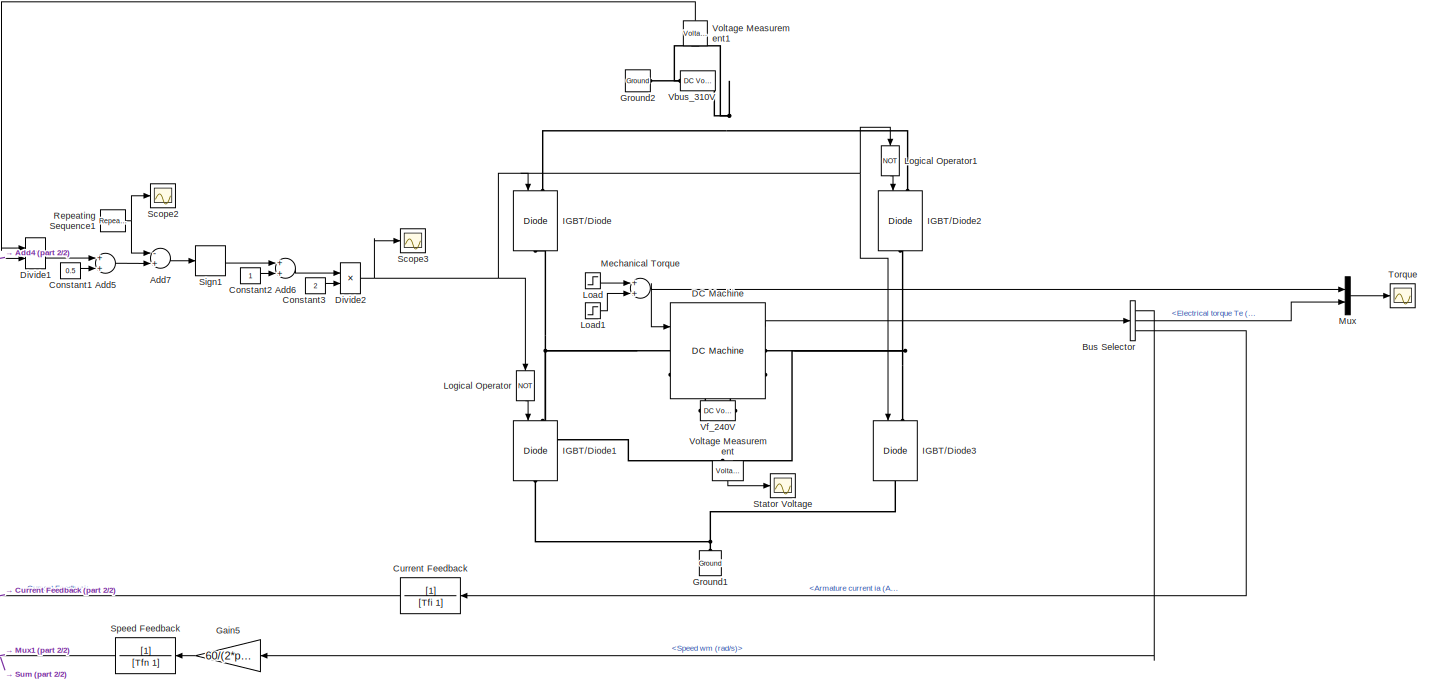
[diagram: root canvas - part 1/2, right side, full height]
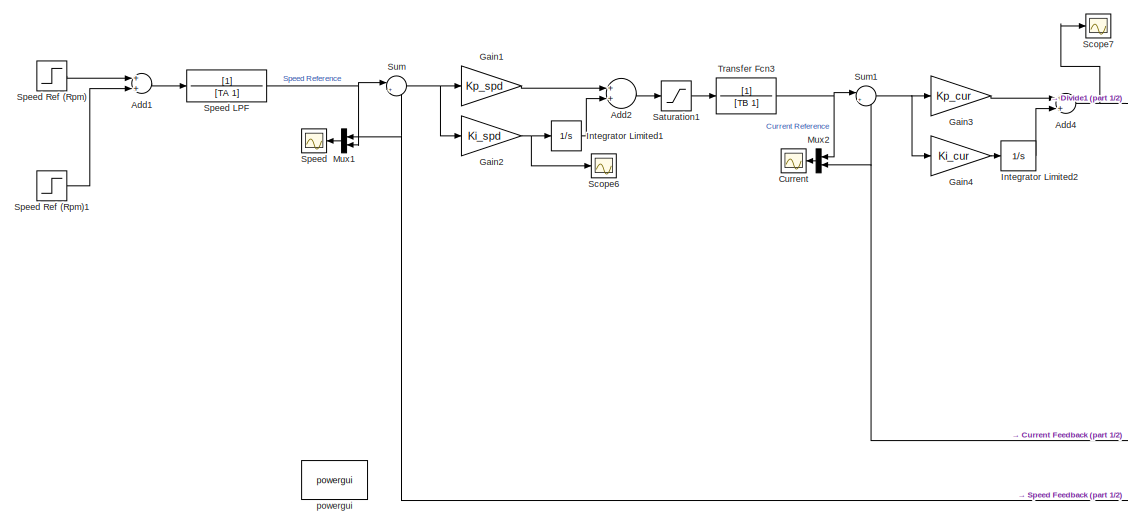
[diagram: root canvas - part 2/2, middle left region]
MODEL slx_5696df85d1f1
KIND model
CONFIG AbsTol = auto
CONFIG EnableMultiTasking = off
CONFIG FixedStep = auto
CONFIG MaxStep = 1e-6
CONFIG MinStep = auto
CONFIG RelTol = 1e-3
CONFIG SampleTimeConstraint = Unconstrained
CONFIG Solver = VariableStepAuto
CONFIG SolverName = VariableStepAuto
CONFIG StartTime = 0.0
CONFIG StopTime = 1
BLOCK [Sum] Add1
  InputSameDT = off
  OutDataTypeStr = Inherit: Inherit via internal rule
  Ports = [2, 1]
  SaturateOnIntegerOverflow = off
BLOCK [Sum] Add2
  InputSameDT = off
  OutDataTypeStr = Inherit: Inherit via internal rule
  Ports = [2, 1]
  SaturateOnIntegerOverflow = off
BLOCK [Sum] Add4
  InputSameDT = off
  OutDataTypeStr = Inherit: Inherit via internal rule
  Ports = [2, 1]
  SaturateOnIntegerOverflow = off
BLOCK [Sum] Add5
  InputSameDT = off
  OutDataTypeStr = Inherit: Inherit via internal rule
  Ports = [2, 1]
  SaturateOnIntegerOverflow = off
BLOCK [Sum] Add6
  InputSameDT = off
  OutDataTypeStr = Inherit: Inherit via internal rule
  Ports = [2, 1]
  SaturateOnIntegerOverflow = off
BLOCK [Sum] Add7
  InputSameDT = off
  Inputs = -+
  OutDataTypeStr = Inherit: Inherit via internal rule
  Ports = [2, 1]
  SaturateOnIntegerOverflow = off
BLOCK [BusSelector] Bus Selector
  OutputAsBus = off
  OutputSignals = Speed wm (rad/s),Electrical torque Te (n m),Armature current ia (A)
  Ports = [1, 3]
BLOCK [Constant] Constant1
  Value = 0.5
BLOCK [Constant] Constant2
BLOCK [Constant] Constant3
  Value = 2
BLOCK [Scope] Current
  Floating = off
  NumInputPorts = 1
  Ports = [1]
  ScopeSpecificationString = Simulink.scopes.TimeScopeBlockCfg('CurrentConfiguration', extmgr.ConfigurationSet(extmgr.Configuration('Core','General UI',true,'FigureColor',[1 1 1]),extmgr.Configuration('Core','Source UI',true),extmgr.Configuration('Sources','WiredSimulink',true,'DataLoggingVariableName','ScopeData1'),extmgr.Configuration('Visuals','Time Domain',true,'SerializedDisplays',{struct('MinYLimReal','-72.24721','MaxYL...<+1722ch>
BLOCK [TransferFcn] Current Feedback
  Denominator = [Tfi 1]
BLOCK [Reference] DC Machine  REF=powerlib/Machines/DC Machine
  Ports = [1, 1, 0, 0, 0, 2, 2]
  SourceBlock = powerlib/Machines/DC Machine
  SourceProductBaseCode = PS
  SourceProductName = Simscape Electrical
  SourceType = DC machine
BLOCK [Product] Divide1
  InputSameDT = off
  Inputs = /*
  OutDataTypeStr = Inherit: Inherit via internal rule
  Ports = [2, 1]
  RndMeth = Floor
  SaturateOnIntegerOverflow = off
BLOCK [Product] Divide2
  InputSameDT = off
  Inputs = */
  OutDataTypeStr = Inherit: Inherit via internal rule
  Ports = [2, 1]
  RndMeth = Floor
  SaturateOnIntegerOverflow = off
BLOCK [Gain] Gain1
  Gain = Kp_spd
  OutDataTypeStr = Inherit: Inherit via internal rule
  ParamDataTypeStr = Inherit: Inherit via internal rule
  SaturateOnIntegerOverflow = off
BLOCK [Gain] Gain2
  Gain = Ki_spd
  OutDataTypeStr = Inherit: Inherit via internal rule
  ParamDataTypeStr = Inherit: Inherit via internal rule
  SaturateOnIntegerOverflow = off
BLOCK [Gain] Gain3
  Gain = Kp_cur
  OutDataTypeStr = Inherit: Inherit via internal rule
  ParamDataTypeStr = Inherit: Inherit via internal rule
  SaturateOnIntegerOverflow = off
BLOCK [Gain] Gain4
  Gain = Ki_cur
  OutDataTypeStr = Inherit: Inherit via internal rule
  ParamDataTypeStr = Inherit: Inherit via internal rule
  SaturateOnIntegerOverflow = off
BLOCK [Gain] Gain5
  Gain = 60/(2*pi)
  OutDataTypeStr = Inherit: Inherit via internal rule
  ParamDataTypeStr = Inherit: Inherit via internal rule
  SaturateOnIntegerOverflow = off
BLOCK [Reference] Ground1  REF=powerlib/Elements/Ground
  Ports = [0, 0, 0, 0, 0, 1]
  SourceBlock = powerlib/Elements/Ground
  SourceProductBaseCode = PS
  SourceProductName = Simscape Electrical
  SourceType = Ground
BLOCK [Reference] Ground2  REF=powerlib/Elements/Ground
  Ports = [0, 0, 0, 0, 0, 1]
  SourceBlock = powerlib/Elements/Ground
  SourceProductBaseCode = PS
  SourceProductName = Simscape Electrical
  SourceType = Ground
BLOCK [Reference] IGBT//Diode  REF=powerlib/Power
Electronics/IGBT//Diode
  Ports = [1, 0, 0, 0, 0, 1, 1]
  SourceBlock = powerlib/Power\nElectronics/IGBT//Diode
  SourceProductBaseCode = PS
  SourceProductName = Simscape Electrical
  SourceType = IGBT/Diode
BLOCK [Reference] IGBT//Diode1  REF=powerlib/Power
Electronics/IGBT//Diode
  Ports = [1, 0, 0, 0, 0, 1, 1]
  SourceBlock = powerlib/Power\nElectronics/IGBT//Diode
  SourceProductBaseCode = PS
  SourceProductName = Simscape Electrical
  SourceType = IGBT/Diode
BLOCK [Reference] IGBT//Diode2  REF=powerlib/Power
Electronics/IGBT//Diode
  Ports = [1, 0, 0, 0, 0, 1, 1]
  SourceBlock = powerlib/Power\nElectronics/IGBT//Diode
  SourceProductBaseCode = PS
  SourceProductName = Simscape Electrical
  SourceType = IGBT/Diode
BLOCK [Reference] IGBT//Diode3  REF=powerlib/Power
Electronics/IGBT//Diode
  Ports = [1, 0, 0, 0, 0, 1, 1]
  SourceBlock = powerlib/Power\nElectronics/IGBT//Diode
  SourceProductBaseCode = PS
  SourceProductName = Simscape Electrical
  SourceType = IGBT/Diode
BLOCK [Integrator] Integrator Limited1
  LimitOutput = on
  LowerSaturationLimit = 0
  Ports = [1, 1]
  UpperSaturationLimit = 2*IaN
BLOCK [Integrator] Integrator Limited2
  LimitOutput = on
  LowerSaturationLimit = 0
  Ports = [1, 1]
  UpperSaturationLimit = 2*IaN
BLOCK [Step] Load
  After = TN
  SampleTime = 0
  Time = 0.4
BLOCK [Step] Load1
  After = -0.2*TN
  SampleTime = 0
  Time = 0.6
BLOCK [Logic] Logical Operator
  AllPortsSameDT = off
  Operator = NOT
  OutDataTypeStr = boolean
  Ports = [1, 1]
BLOCK [Logic] Logical Operator1
  AllPortsSameDT = off
  Operator = NOT
  OutDataTypeStr = boolean
  Ports = [1, 1]
BLOCK [Sum] Mechanical Torque
  InputSameDT = off
  OutDataTypeStr = Inherit: Inherit via internal rule
  Ports = [2, 1]
  SaturateOnIntegerOverflow = off
BLOCK [Mux] Mux
  DisplayOption = bar
  Inputs = 2
  Ports = [2, 1]
BLOCK [Mux] Mux1
  DisplayOption = bar
  Inputs = 2
  Ports = [2, 1]
BLOCK [Mux] Mux2
  DisplayOption = bar
  Inputs = 2
  Ports = [2, 1]
BLOCK [Reference] Repeating Sequence1  REF=simulink/Sources/Repeating
Sequence
  Ports = [0, 1]
  SourceBlock = simulink/Sources/Repeating\nSequence
  SourceProductBaseCode = SL
  SourceProductName = Simulink
  SourceType = Repeating table
BLOCK [Saturate] Saturation1
  InputPortMap = u0
  LowerLimit = -2*IaN
  Ports = [1, 1]
  UpperLimit = 2*IaN
BLOCK [Scope] Scope2
  Floating = off
  NumInputPorts = 1
  Ports = [1]
  ScopeSpecificationString = Simulink.scopes.TimeScopeBlockCfg('CurrentConfiguration', extmgr.ConfigurationSet(extmgr.Configuration('Core','General UI',true),extmgr.Configuration('Core','Source UI',true),extmgr.Configuration('Sources','WiredSimulink',true,'DataLoggingVariableName','ScopeData2'),extmgr.Configuration('Visuals','Time Domain',true,'SerializedDisplays',{struct('MinYLimReal','-0.125','MaxYLimReal','1.125','YLabelRe...<+1465ch>
BLOCK [Scope] Scope3
  Floating = off
  NumInputPorts = 1
  Ports = [1]
  ScopeSpecificationString = Simulink.scopes.TimeScopeBlockCfg('CurrentConfiguration', extmgr.ConfigurationSet(extmgr.Configuration('Core','General UI',true),extmgr.Configuration('Core','Source UI',true),extmgr.Configuration('Sources','WiredSimulink',true,'DataLoggingVariableName','ScopeData3'),extmgr.Configuration('Visuals','Time Domain',true,'SerializedDisplays',{struct('MinYLimReal','-0.125','MaxYLimReal','1.125','YLabelRe...<+1428ch>
BLOCK [Scope] Scope6
  Floating = off
  NumInputPorts = 1
  Ports = [1]
  ScopeSpecificationString = Simulink.scopes.TimeScopeBlockCfg('CurrentConfiguration', extmgr.ConfigurationSet(extmgr.Configuration('Core','General UI',true),extmgr.Configuration('Core','Source UI',true),extmgr.Configuration('Sources','WiredSimulink',true,'DataLoggingVariableName','ScopeData6'),extmgr.Configuration('Visuals','Time Domain',true,'SerializedDisplays',{struct('MinYLimReal','-64598.09852','MaxYLimReal','138424.502...<+1429ch>
BLOCK [Scope] Scope7
  Floating = off
  NumInputPorts = 1
  Ports = [1]
  ScopeSpecificationString = Simulink.scopes.TimeScopeBlockCfg('CurrentConfiguration', extmgr.ConfigurationSet(extmgr.Configuration('Core','General UI',true),extmgr.Configuration('Core','Source UI',true),extmgr.Configuration('Sources','WiredSimulink',true,'DataLoggingVariableName','ScopeData7'),extmgr.Configuration('Visuals','Time Domain',true,'SerializedDisplays',{struct('MinYLimReal','-4810.1032','MaxYLimReal','4735.3681','...<+1379ch>
BLOCK [Signum] Sign1
BLOCK [Scope] Speed
  Floating = off
  NumInputPorts = 1
  Ports = [1]
  ScopeSpecificationString = Simulink.scopes.TimeScopeBlockCfg('CurrentConfiguration', extmgr.ConfigurationSet(extmgr.Configuration('Core','General UI',true,'FigureColor',[1 1 1]),extmgr.Configuration('Core','Source UI',true),extmgr.Configuration('Sources','WiredSimulink',true),extmgr.Configuration('Visuals','Time Domain',true,'SerializedDisplays',{struct('MinYLimReal','-160.72103','MaxYLimReal','1446.48883','YLabelReal','','...<+1597ch>
BLOCK [TransferFcn] Speed Feedback
  Denominator = [Tfn 1]
BLOCK [TransferFcn] Speed LPF
  Denominator = [TA 1]
BLOCK [Step] Speed Ref (Rpm)
  After = 0.8*nN
  SampleTime = 0
  Time = 0.2
BLOCK [Step] Speed Ref (Rpm)1
  After = -0.3*nN
  SampleTime = 0
  Time = 0.8
  VectorParams1D = off
BLOCK [Scope] Stator Voltage
  Floating = off
  NumInputPorts = 1
  Ports = [1]
  ScopeSpecificationString = Simulink.scopes.TimeScopeBlockCfg('CurrentConfiguration', extmgr.ConfigurationSet(extmgr.Configuration('Core','General UI',true,'FigureColor',[1 1 1]),extmgr.Configuration('Core','Source UI',true),extmgr.Configuration('Sources','WiredSimulink',true,'DataLoggingVariableName','ScopeData4'),extmgr.Configuration('Visuals','Time Domain',true,'SerializedDisplays',{struct('MinYLimReal','-387.49999','MaxY...<+1619ch>
BLOCK [Sum] Sum
  IconShape = round
  InputSameDT = off
  Inputs = |+-
  OutDataTypeStr = Inherit: Inherit via internal rule
  Ports = [2, 1]
  SaturateOnIntegerOverflow = off
BLOCK [Sum] Sum1
  IconShape = round
  InputSameDT = off
  Inputs = |+-
  OutDataTypeStr = Inherit: Inherit via internal rule
  Ports = [2, 1]
  SaturateOnIntegerOverflow = off
BLOCK [Scope] Torque
  Floating = off
  NumInputPorts = 1
  Ports = [1]
  ScopeSpecificationString = Simulink.scopes.TimeScopeBlockCfg('CurrentConfiguration', extmgr.ConfigurationSet(extmgr.Configuration('Core','General UI',true,'FigureColor',[1 1 1]),extmgr.Configuration('Core','Source UI',true),extmgr.Configuration('Sources','WiredSimulink',true,'DataLoggingVariableName','ScopeData5'),extmgr.Configuration('Visuals','Time Domain',true,'SerializedDisplays',{struct('MinYLimReal','-100','MaxYLimRea...<+1655ch>
BLOCK [TransferFcn] Transfer Fcn3
  Denominator = [TB 1]
BLOCK [Reference] Vbus_310V  REF=powerlib/Electrical
Sources/DC Voltage Source
  Ports = [0, 0, 0, 0, 0, 1, 1]
  SourceBlock = powerlib/Electrical\nSources/DC Voltage Source
  SourceProductBaseCode = PS
  SourceProductName = Simscape Electrical
  SourceType = DC Voltage Source
BLOCK [Reference] Vf_240V  REF=powerlib/Electrical
Sources/DC Voltage Source
  Ports = [0, 0, 0, 0, 0, 1, 1]
  SourceBlock = powerlib/Electrical\nSources/DC Voltage Source
  SourceProductBaseCode = PS
  SourceProductName = Simscape Electrical
  SourceType = DC Voltage Source
BLOCK [Reference] Voltage Measurement  REF=powerlib/Measurements/Voltage Measurement
  Ports = [0, 1, 0, 0, 0, 2]
  SourceBlock = powerlib/Measurements/Voltage Measurement
  SourceProductBaseCode = PS
  SourceProductName = Simscape Electrical
  SourceType = Voltage Measurement
  UserDataPersistent = on
BLOCK [Reference] Voltage Measurement1  REF=powerlib/Measurements/Voltage Measurement
  Ports = [0, 1, 0, 0, 0, 2]
  SourceBlock = powerlib/Measurements/Voltage Measurement
  SourceProductBaseCode = PS
  SourceProductName = Simscape Electrical
  SourceType = Voltage Measurement
  UserDataPersistent = on
BLOCK [Reference] powergui  REF=powerlib/powergui
  Ports = []
  Priority = 1
  SourceBlock = powerlib/powergui
  SourceProductBaseCode = PS
  SourceProductName = Simscape Electrical
  SourceType = PSB option menu block
LINE Add1:1 -> Speed LPF:1
LINE Add2:1 -> Saturation1:1
NET Add4:1 -> Divide1:2, Scope7:1
LINE Add5:1 -> Add7:2
LINE Add6:1 -> Divide2:1
LINE Add7:1 -> Sign1:1
LINE Bus Selector:1 -> Gain5:1
LINE Bus Selector:2 -> Mux:2
LINE Bus Selector:3 -> Current Feedback:1
LINE Constant1:1 -> Add5:2
LINE Constant2:1 -> Add6:2
LINE Constant3:1 -> Divide2:2
NET Current Feedback:1 -> Mux2:2, Sum1:2
LINE DC Machine:1 -> Bus Selector:1
LINE Divide1:1 -> Add5:1
NET Divide2:1 -> IGBT//Diode3:1, IGBT//Diode:1, Logical Operator1:1, Logical Operator:1, Scope3:1
LINE Gain1:1 -> Add2:1
NET Gain2:1 -> Integrator Limited1:1, Scope6:1
LINE Gain3:1 -> Add4:1
LINE Gain4:1 -> Integrator Limited2:1
LINE Gain5:1 -> Speed Feedback:1
LINE Integrator Limited1:1 -> Add2:2
LINE Integrator Limited2:1 -> Add4:2
LINE Load1:1 -> Mechanical Torque:2
LINE Load:1 -> Mechanical Torque:1
LINE Logical Operator1:1 -> IGBT//Diode2:1
LINE Logical Operator:1 -> IGBT//Diode1:1
NET Mechanical Torque:1 -> DC Machine:1, Mux:1
LINE Mux1:1 -> Speed:1
LINE Mux2:1 -> Current:1
LINE Mux:1 -> Torque:1
NET Repeating Sequence1:1 -> Add7:1, Scope2:1
LINE Saturation1:1 -> Transfer Fcn3:1
LINE Sign1:1 -> Add6:1
NET Speed Feedback:1 -> Mux1:1, Sum:2
NET Speed LPF:1 -> Mux1:2, Sum:1
LINE Speed Ref (Rpm)1:1 -> Add1:2
LINE Speed Ref (Rpm):1 -> Add1:1
NET Sum1:1 -> Gain3:1, Gain4:1
NET Sum:1 -> Gain1:1, Gain2:1
NET Transfer Fcn3:1 -> Mux2:1, Sum1:1
LINE Voltage Measurement1:1 -> Divide1:1
LINE Voltage Measurement:1 -> Stator Voltage:1
PNET net1: DC Machine:LConn1 -- IGBT//Diode1:LConn1 -- IGBT//Diode:RConn1 -- Voltage Measurement:LConn1
PLINE DC Machine:LConn2 -- Vf_240V:RConn1
PNET net2: DC Machine:RConn1 -- IGBT//Diode2:RConn1 -- IGBT//Diode3:LConn1 -- Voltage Measurement:LConn2
PLINE DC Machine:RConn2 -- Vf_240V:LConn1
PNET net3: Ground1:LConn1 -- IGBT//Diode1:RConn1 -- IGBT//Diode3:RConn1
PNET net4: Ground2:LConn1 -- Vbus_310V:LConn1 -- Voltage Measurement1:LConn2
PNET net5: IGBT//Diode2:LConn1 -- IGBT//Diode:LConn1 -- Vbus_310V:RConn1 -- Voltage Measurement1:LConn1
note: NET lines group one-source signal fan-out (src -> all destinations, sorted); 1:1 wires keep LINE; PNET lines group multi-terminal physical nets as a canonical sorted terminal list (undirected conserving connections); 2-terminal nets keep the pairwise PLINE form
